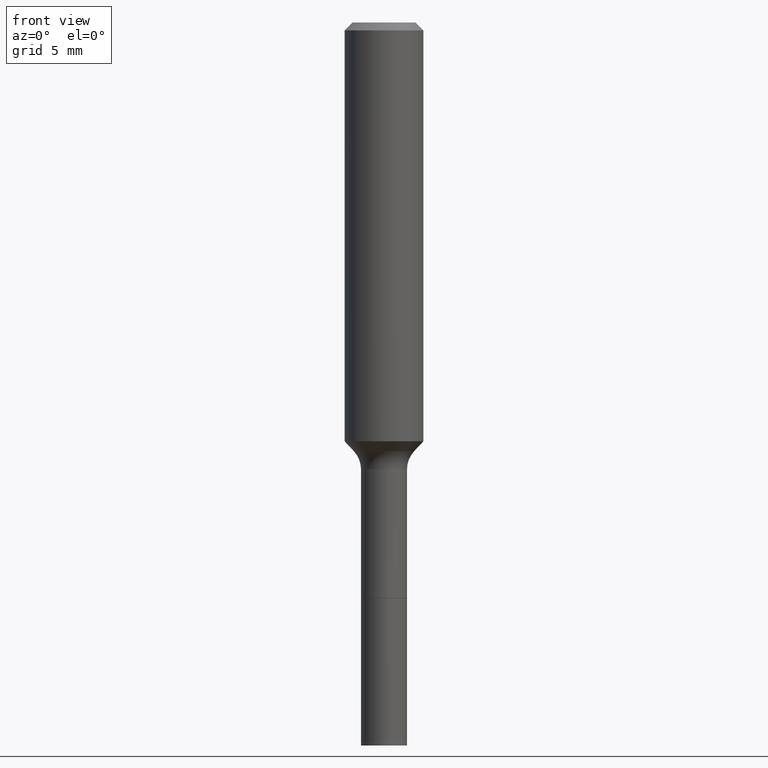
[diagram: clean part render]
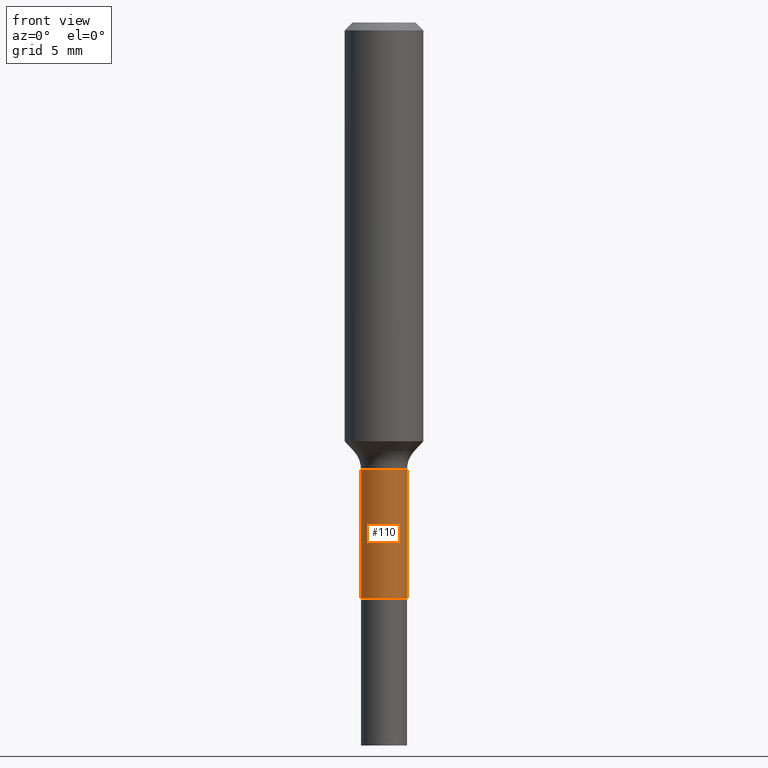
[diagram: same view with one face highlighted and labeled with its STEP entity id]
A machine part, front view. The second image highlights one B-rep face of the part: STEP entity #110.
In plain terms, the highlighted cylindrical surface (edge-blend (fillet) strip) has radius 1.7501 mm, axis along (-0, 0, 1).
Its self-contained STEP definition (entity closure, byte-faithful):
#15 = LINE ( 'NONE', #282, #436 ) ;
#26 = CIRCLE ( 'NONE', #502, 0.06889999999999996128 ) ;
#37 = FACE_OUTER_BOUND ( 'NONE', #365, .T. ) ;
#45 = CARTESIAN_POINT ( 'NONE',  ( -0.06889999999999996128, -4.856417707030973435E-15, -1.338399999999999812 ) ) ;
#57 = CARTESIAN_POINT ( 'NONE',  ( -0.06890000000000001679, -4.856417707030972646E-15, -1.723899999999999988 ) ) ;
#81 = CARTESIAN_POINT ( 'NONE',  ( 0.06890000000000000291, -6.500090808524281979E-15, -1.723899999999999988 ) ) ;
#104 = VERTEX_POINT ( 'NONE', #45 ) ;
#108 = ORIENTED_EDGE ( 'NONE', *, *, #471, .T. ) ;
#110 = ADVANCED_FACE ( 'NONE', ( #37 ), #202, .T. ) ;
#122 = CIRCLE ( 'NONE', #418, 0.06890000000000000291 ) ;
#129 = DIRECTION ( 'NONE',  ( -2.445468806185136877E-29, 3.491481338843145188E-15, 1.000000000000000000 ) ) ;
#168 = DIRECTION ( 'NONE',  ( -2.445468806185136597E-29, 3.491481338843145583E-15, 1.000000000000000000 ) ) ;
#178 = EDGE_CURVE ( 'NONE', #505, #104, #15, .T. ) ;
#202 = CYLINDRICAL_SURFACE ( 'NONE', #510, 0.06889999999999997515 ) ;
#206 = DIRECTION ( 'NONE',  ( 1.000000000000000000, -6.982962677686269866E-15, 0.000000000000000000 ) ) ;
#212 = DIRECTION ( 'NONE',  ( 1.000000000000000000, -6.982962677686267499E-15, 4.876176775795935793E-29 ) ) ;
#251 = LINE ( 'NONE', #500, #484 ) ;
#262 = CARTESIAN_POINT ( 'NONE',  ( 0.000000000000000000, 0.000000000000000000, 0.000000000000000000 ) ) ;
#266 = EDGE_CURVE ( 'NONE', #396, #333, #251, .T. ) ;
#273 = EDGE_CURVE ( 'NONE', #104, #333, #26, .T. ) ;
#282 = CARTESIAN_POINT ( 'NONE',  ( -0.06889999999999997515, 4.895639449387088515E-16, -3.389146277185628616E-30 ) ) ;
#287 = DIRECTION ( 'NONE',  ( -2.445468806185136597E-29, 3.491481338843145583E-15, 1.000000000000000000 ) ) ;
#309 = DIRECTION ( 'NONE',  ( 1.000000000000000000, -6.982962677686265922E-15, 0.000000000000000000 ) ) ;
#319 = ORIENTED_EDGE ( 'NONE', *, *, #273, .F. ) ;
#333 = VERTEX_POINT ( 'NONE', #388 ) ;
#364 = DIRECTION ( 'NONE',  ( -2.445468806185136597E-29, 3.491481338843145583E-15, 1.000000000000000000 ) ) ;
#365 = EDGE_LOOP ( 'NONE', ( #473, #108, #377, #319 ) ) ;
#377 = ORIENTED_EDGE ( 'NONE', *, *, #266, .T. ) ;
#388 = CARTESIAN_POINT ( 'NONE',  ( 0.06889999999999996128, -5.154124752400249085E-15, -1.338399999999999812 ) ) ;
#396 = VERTEX_POINT ( 'NONE', #81 ) ;
#412 = DIRECTION ( 'NONE',  ( -2.445468806185136877E-29, 3.491481338843145188E-15, 1.000000000000000000 ) ) ;
#418 = AXIS2_PLACEMENT_3D ( 'NONE', #486, #364, #309 ) ;
#436 = VECTOR ( 'NONE', #412, 39.37007874015748143 ) ;
#450 = CARTESIAN_POINT ( 'NONE',  ( 3.273015450198186344E-29, -4.672998623907665346E-15, -1.338399999999999812 ) ) ;
#471 = EDGE_CURVE ( 'NONE', #505, #396, #122, .T. ) ;
#473 = ORIENTED_EDGE ( 'NONE', *, *, #178, .F. ) ;
#484 = VECTOR ( 'NONE', #129, 39.37007874015748143 ) ;
#486 = CARTESIAN_POINT ( 'NONE',  ( 4.215743674982556354E-29, -6.018964680031698240E-15, -1.723899999999999988 ) ) ;
#500 = CARTESIAN_POINT ( 'NONE',  ( 0.06889999999999997515, -4.811261284925836399E-16, 3.359685798523398567E-30 ) ) ;
#502 = AXIS2_PLACEMENT_3D ( 'NONE', #450, #287, #206 ) ;
#505 = VERTEX_POINT ( 'NONE', #57 ) ;
#510 = AXIS2_PLACEMENT_3D ( 'NONE', #262, #168, #212 ) ;